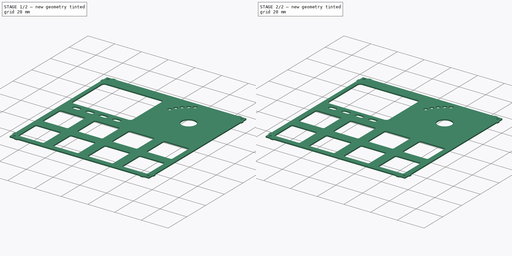
[diagram: build sequence overview — one tinted view per stage of 2, left to right]
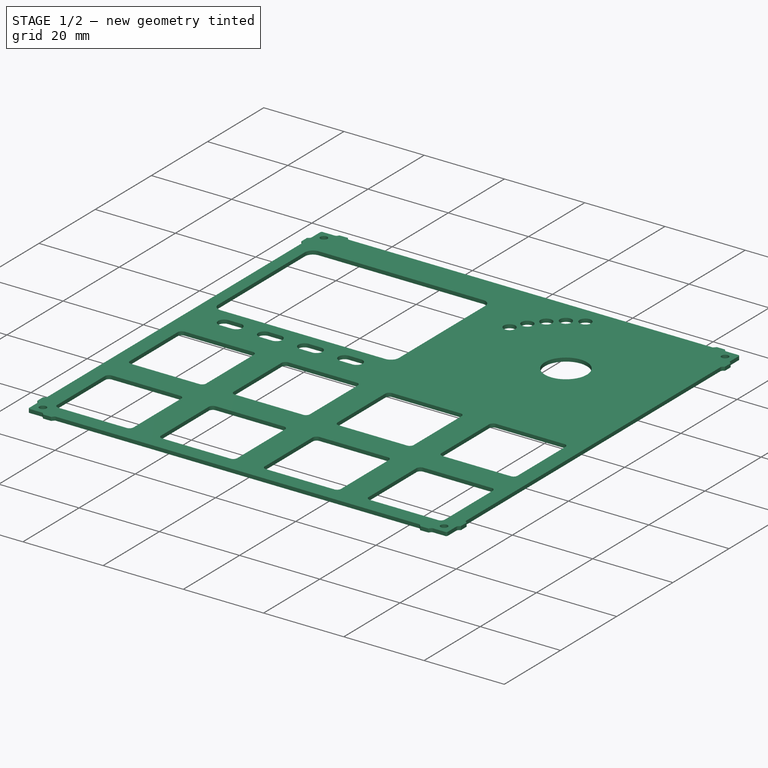
[diagram: stage 1 of 2 — iso view after this stage's code; geometry added in this stage tinted green]
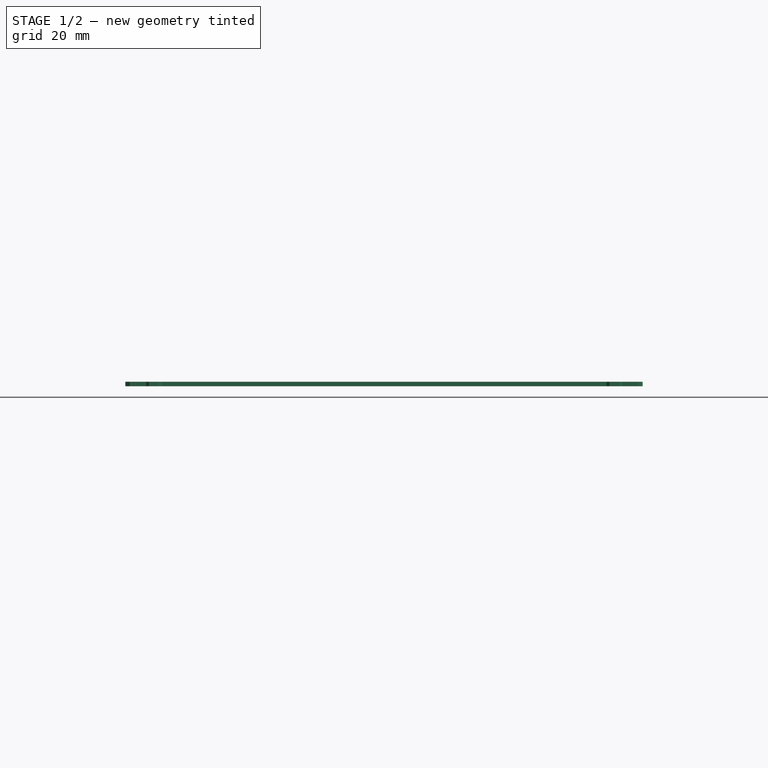
[diagram: stage 1 of 2 — front view after this stage's code; geometry added in this stage tinted green]
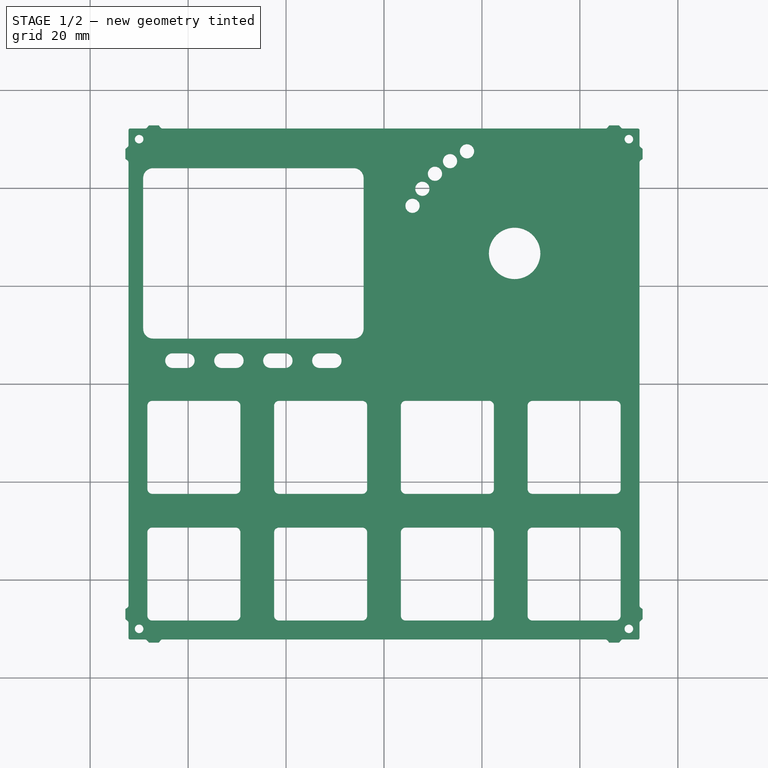
[diagram: stage 1 of 2 — top view after this stage's code; geometry added in this stage tinted green]
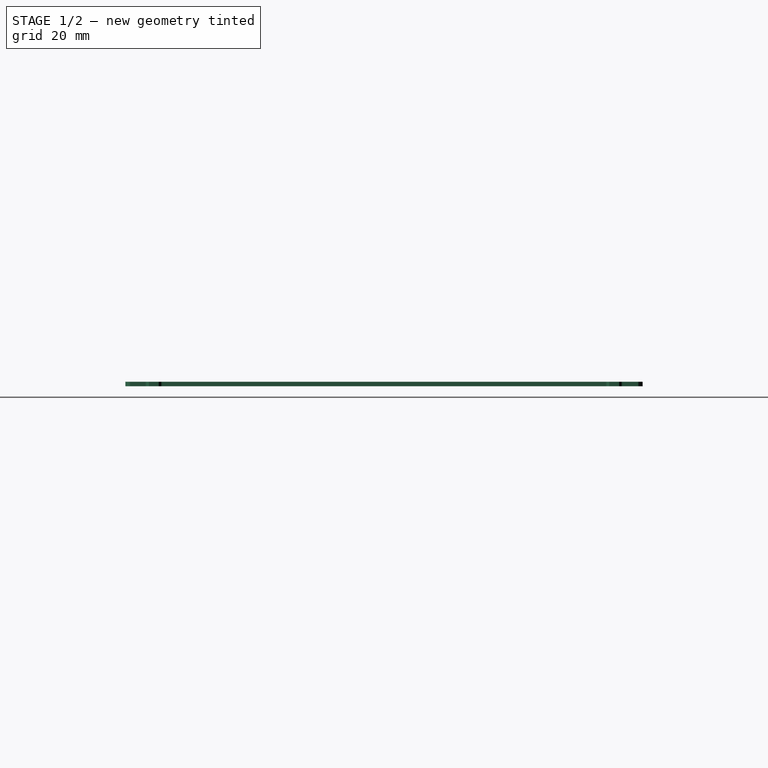
[diagram: stage 1 of 2 — right view after this stage's code; geometry added in this stage tinted green]
FCSTD DOCUMENT  (FreeCAD 1.0R39319 (Git))
Label: FRONTPANEL-VSN1-L
License: All rights reserved
LicenseURL: https://en.wikipedia.org/wiki/All_rights_reserved
objects: PartDesign::Line×9, Part::Feature×1, PartDesign::CoordinateSystem×1, App::Part×1, PartDesign::FeatureBase×1, Sketcher::SketchObject×1, PartDesign::Pocket×1, PartDesign::Body×1
note: 19 computed .brp shape members not serialized (recipe doc carries the construction recipe); baked Part::Feature solids carry a one-line shape summary decoded from their .brp

FEATURE [Part::Feature] Part__Feature  label="kibot_u2ziuiw0_PCB"
  shape: bbox 105.6 x 105.6 x 0.91 mm, 180 faces (baked)
FEATURE [PartDesign::CoordinateSystem] LCS_1
  AttacherType = Attacher::AttachEngine3D
  MapMode = 1
FEATURE [PartDesign::Line] CircleAxis_1
  AttacherType = Attacher::AttachEngineLine
  AttachmentSupport = -> [Part__Feature]
  Length = 8.17259
  MapMode = 19
  Placement = pos=(5.82492,36.3902,0.91) rot=(0.707107,-0.707107,0;3.14159rad)
  ResizeMode = 1
FEATURE [PartDesign::Line] CircleAxis_2
  AttacherType = Attacher::AttachEngineLine
  AttachmentSupport = -> [Part__Feature]
  Length = 8.17259
  MapMode = 19
  Placement = pos=(7.8295,39.8623,0.91) rot=(0.707107,-0.707107,0;3.14159rad)
  ResizeMode = 1
FEATURE [PartDesign::Line] CircleAxis_3
  AttacherType = Attacher::AttachEngineLine
  AttachmentSupport = -> [Part__Feature]
  Length = 8.17259
  MapMode = 19
  Placement = pos=(10.4065,42.9335,0.91) rot=(0.707107,-0.707107,0;3.14159rad)
  ResizeMode = 1
FEATURE [PartDesign::Line] CircleAxis_4
  AttacherType = Attacher::AttachEngineLine
  AttachmentSupport = -> [Part__Feature]
  Length = 8.17259
  MapMode = 19
  Placement = pos=(13.4777,45.5105,0.91) rot=(0.707107,-0.707107,0;3.14159rad)
  ResizeMode = 1
FEATURE [PartDesign::Line] CircleAxis_5
  AttacherType = Attacher::AttachEngineLine
  AttachmentSupport = -> [Part__Feature]
  Length = 8.17259
  MapMode = 19
  Placement = pos=(16.9498,47.5151,0.91) rot=(0.707107,-0.707107,0;3.14159rad)
  ResizeMode = 1
FEATURE [PartDesign::Line] CircleAxis_6
  AttacherType = Attacher::AttachEngineLine
  AttachmentSupport = -> [Part__Feature]
  Length = 4.93174
  MapMode = 19
  Placement = pos=(-50,50,0.91) rot=(0,0,1;0rad)
  ResizeMode = 1
FEATURE [PartDesign::Line] CircleAxis_7
  AttacherType = Attacher::AttachEngineLine
  AttachmentSupport = -> [Part__Feature]
  Length = 4.93174
  MapMode = 19
  Placement = pos=(50,50,0.91) rot=(0,0,1;0rad)
  ResizeMode = 1
FEATURE [PartDesign::Line] CircleAxis_8
  AttacherType = Attacher::AttachEngineLine
  AttachmentSupport = -> [Part__Feature]
  Length = 4.93174
  MapMode = 19
  Placement = pos=(50,-50,0.91) rot=(0,0,1;0rad)
  ResizeMode = 1
FEATURE [PartDesign::Line] CircleAxis_9
  AttacherType = Attacher::AttachEngineLine
  AttachmentSupport = -> [Part__Feature]
  Length = 4.93174
  MapMode = 19
  Placement = pos=(-50,-50,0.91) rot=(0,0,1;0rad)
  ResizeMode = 1
FEATURE [App::Part] FP_VSN1_L_3D_1  label="FP-VSN1-L-3D 1"
  Group = -> [Part__Feature,LCS_1,CircleAxis_1,CircleAxis_2,CircleAxis_3,CircleAxis_4,CircleAxis_5,CircleAxis_6,CircleAxis_7,CircleAxis_8,CircleAxis_9]
  Origin = -> Origin
FEATURE [PartDesign::FeatureBase] Clone
  BaseFeature = -> Part__Feature
  Suppressed = false
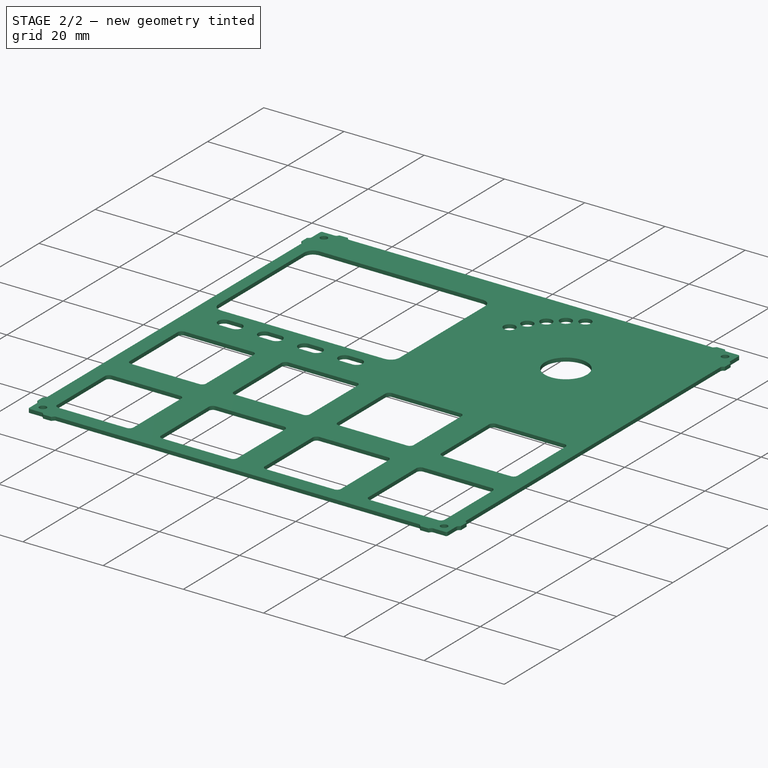
[diagram: stage 2 of 2 — iso view after this stage's code; geometry added in this stage tinted green]
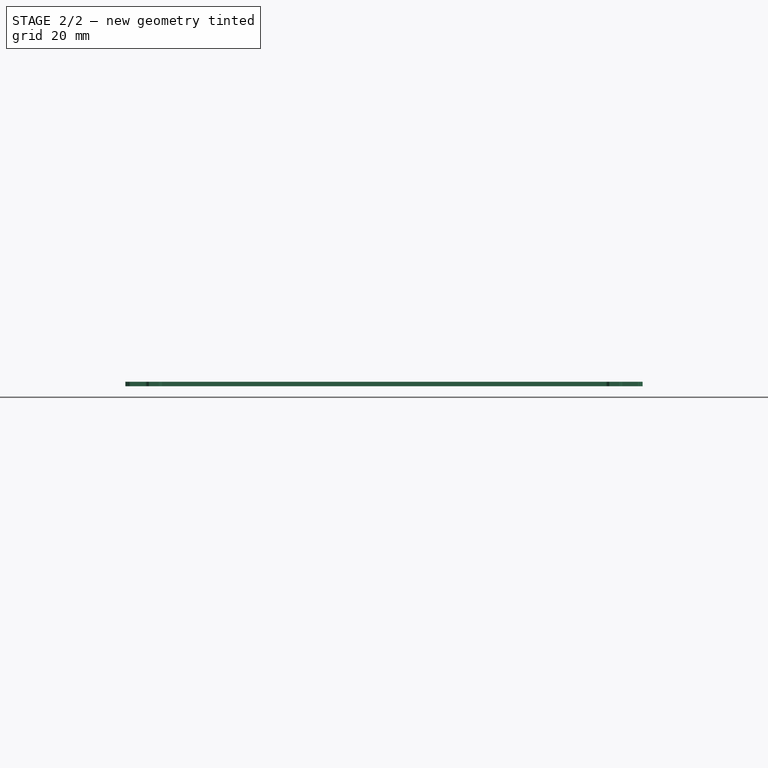
[diagram: stage 2 of 2 — front view after this stage's code; geometry added in this stage tinted green]
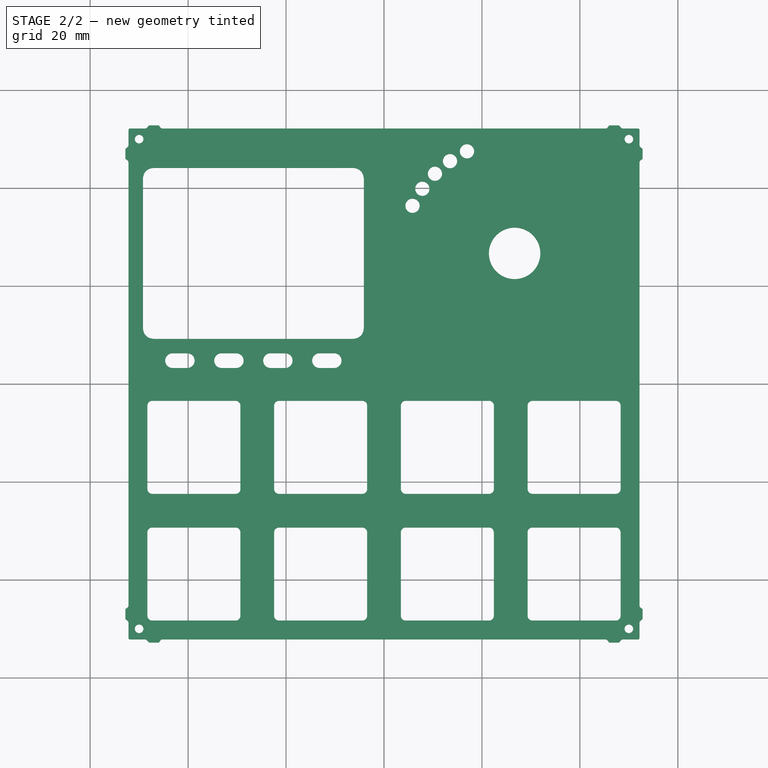
[diagram: stage 2 of 2 — top view after this stage's code; geometry added in this stage tinted green]
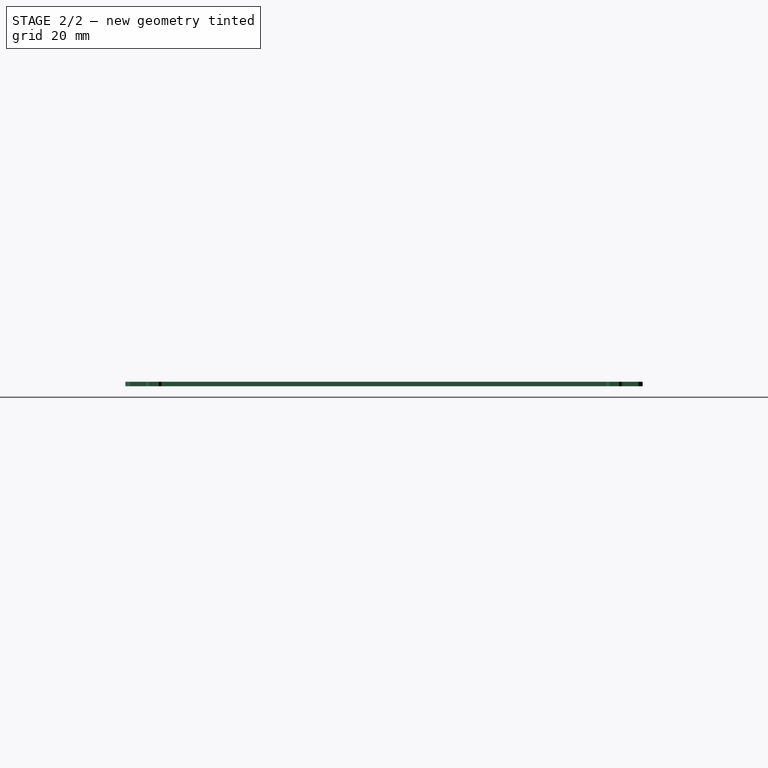
[diagram: stage 2 of 2 — right view after this stage's code; geometry added in this stage tinted green]
FEATURE [Sketcher::SketchObject] Sketch
  ArcFitTolerance = 1e-06
  AttachmentSupport = -> [XY_Plane002]
  FullyConstrained = true
  MakeInternals = false
  MapMode = 5
  sketch-geometry (13):
    g0: LineSegment StartX=-46.92 StartY=9.22 StartZ=0 EndX=-6.42 EndY=9.22 EndZ=0
    g1: LineSegment StartX=-4.12 StartY=11.52 StartZ=0 EndX=-4.12 EndY=41.82 EndZ=0
    g2: LineSegment StartX=-6.42 StartY=44.12 StartZ=0 EndX=-46.92 EndY=44.12 EndZ=0
    g3: LineSegment StartX=-49.22 StartY=41.82 StartZ=0 EndX=-49.22 EndY=11.52 EndZ=0
    g4: GeomPoint [constr] X=-26.67 Y=26.67 Z=0
    g5: ArcOfCircle CenterX=-46.92 CenterY=41.82 CenterZ=0 NormalX=0 NormalY=0 NormalZ=1 AngleXU=0 Radius=2.3 StartAngle=1.5708 EndAngle=3.14159
    g6: GeomPoint [constr] X=-49.22 Y=44.12 Z=0
    g7: ArcOfCircle CenterX=-46.92 CenterY=11.52 CenterZ=0 NormalX=0 NormalY=0 NormalZ=1 AngleXU=0 Radius=2.3 StartAngle=3.14159 EndAngle=4.71239
    g8: GeomPoint [constr] X=-49.22 Y=9.22 Z=0
    g9: ArcOfCircle CenterX=-6.42 CenterY=11.52 CenterZ=0 NormalX=0 NormalY=0 NormalZ=1 AngleXU=0 Radius=2.3 StartAngle=4.71239 EndAngle=6.28319
    g10: GeomPoint [constr] X=-4.12 Y=9.22 Z=0
    g11: ArcOfCircle CenterX=-6.42 CenterY=41.82 CenterZ=0 NormalX=0 NormalY=0 NormalZ=1 AngleXU=0 Radius=2.3 StartAngle=1.1e-15 EndAngle=1.5708
    g12: GeomPoint [constr] X=-4.12 Y=44.12 Z=0
  constraints (29):
    c: Horizontal(g0)
    c: Horizontal(g2)
    c: Vertical(g1)
    c: Vertical(g3)
    c: Symmetric(g12,g8,g4)
    c: PointOnObject(g6,g2)
    c: PointOnObject(g6,g3)
    c: Tangent(g2,g5) = -1.5708
    c: Tangent(g3,g5) = -1.5708
    c: PointOnObject(g8,g3)
    c: PointOnObject(g8,g0)
    c: Tangent(g3,g7) = -1.5708
    c: Tangent(g0,g7) = -1.5708
    c: PointOnObject(g10,g0)
    c: PointOnObject(g10,g1)
    c: Tangent(g0,g9) = -1.5708
    c: Tangent(g1,g9) = -1.5708
    c: PointOnObject(g12,g1)
    c: PointOnObject(g12,g2)
    c: Tangent(g1,g11) = -1.5708
    c: Tangent(g2,g11) = -1.5708
    c: Distance(g1,g3) = 45.1
    c: Distance(g2,g0) = 34.9
    c: Equal(g5,g11)
    c: Equal(g9,g7)
    c: Equal(g7,g5)
    c: Radius(g5) = 2.3
    c: Distance(g4,g-1) = 26.67
    c: Distance(g4,g-2) = 26.67
FEATURE [PartDesign::Pocket] Pocket
  BaseFeature = -> Clone
  Direction = (0,0,-1)
  Length = 5
  Length2 = 5
  Midplane = true
  Profile = -> Sketch
  ReferenceAxis = -> Sketch [N_Axis]
  Refine = true
  Suppressed = false
  Type = 1
FEATURE [PartDesign::Body] Body001
  AllowCompound = false
  Group = -> [Clone,Sketch,Pocket]
  Origin = -> Origin002
  Tip = -> Pocket
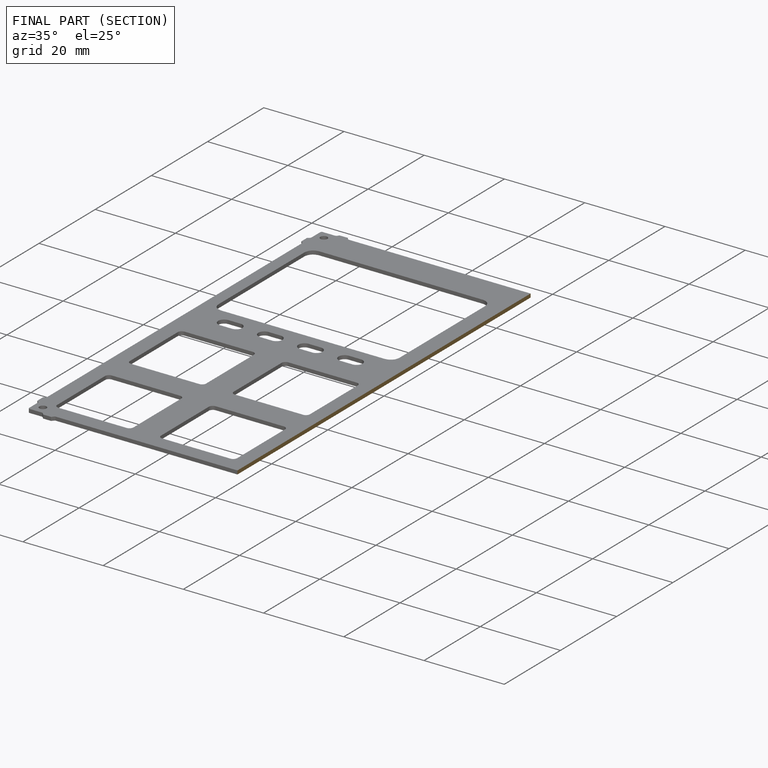
[diagram: finished part — half-section view (interior)]
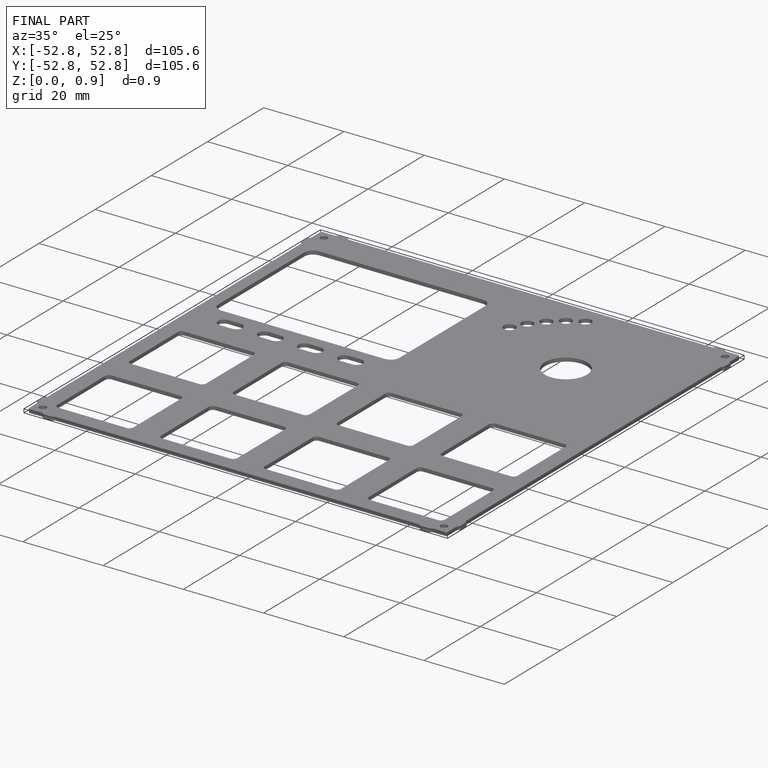
[diagram: finished part — iso view with bounding-box wireframe]
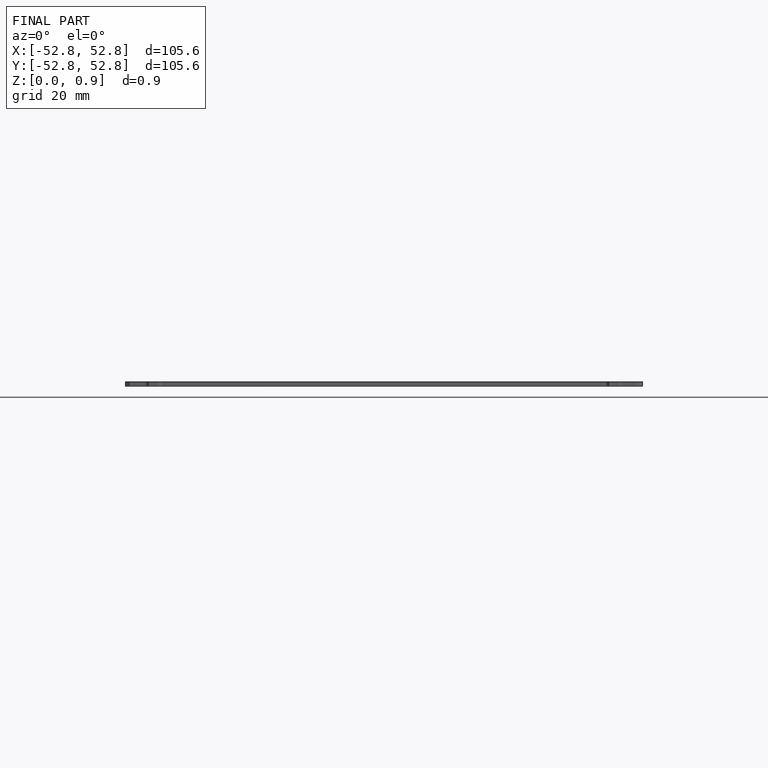
[diagram: finished part — front view with bounding-box wireframe]
